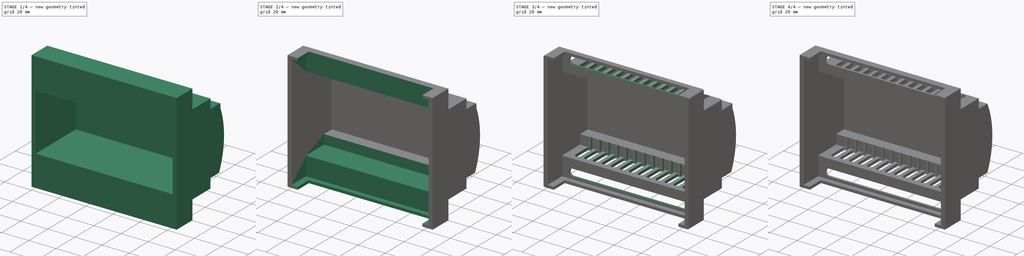
[diagram: build sequence overview — one tinted view per stage of 4, left to right]
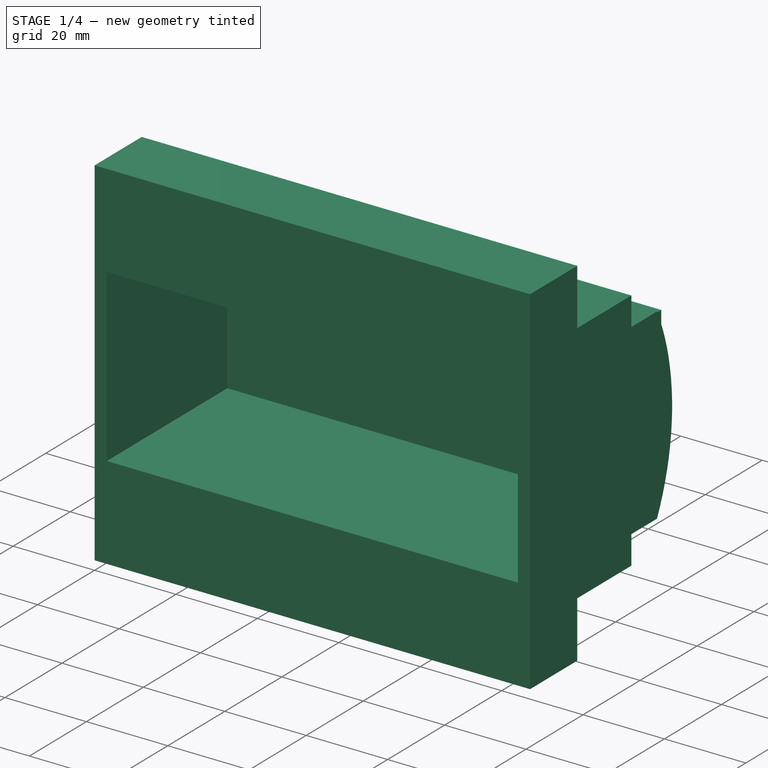
[diagram: stage 1 of 4 — iso view after this stage's code; geometry added in this stage tinted green]
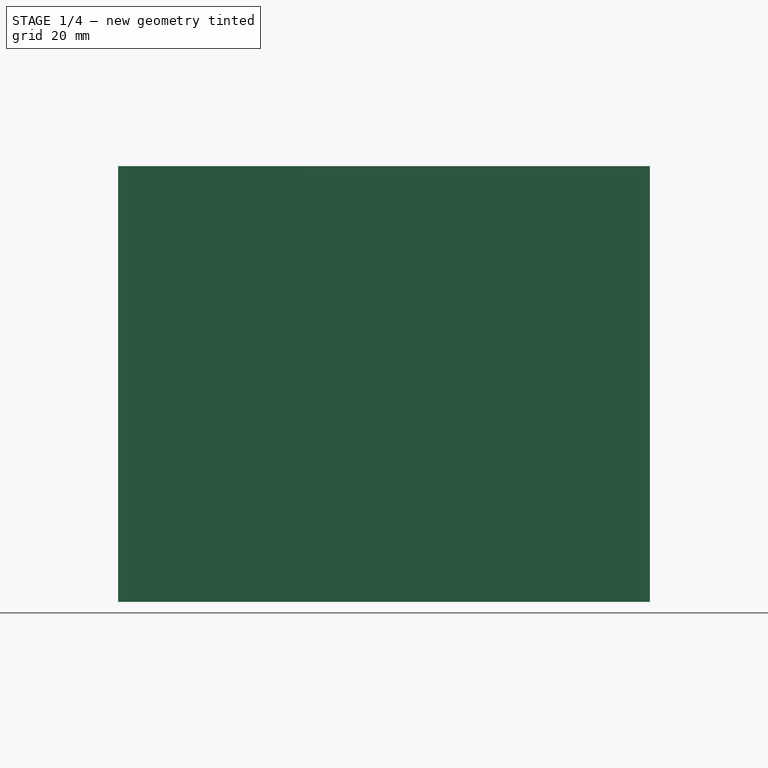
[diagram: stage 1 of 4 — front view after this stage's code; geometry added in this stage tinted green]
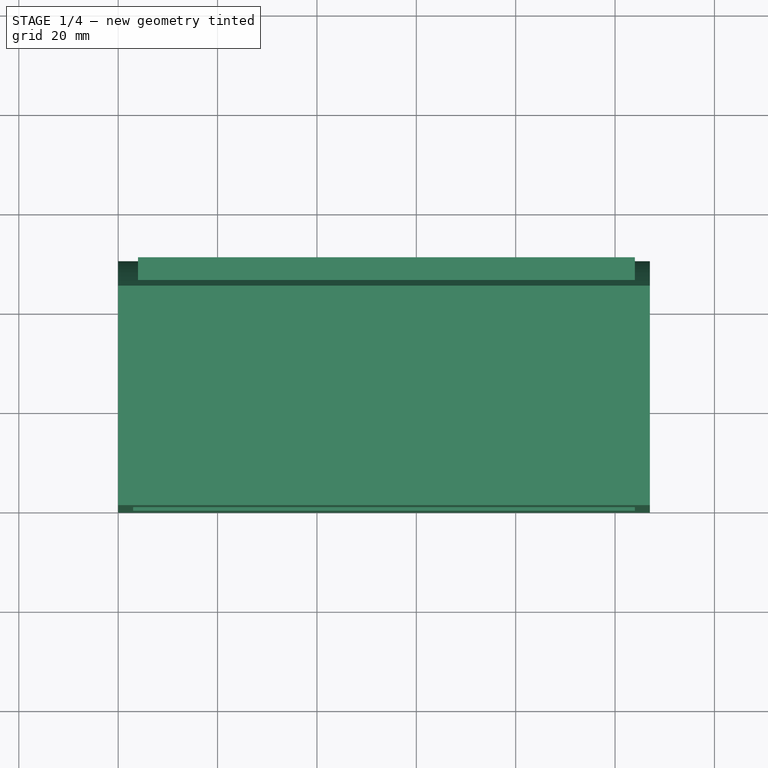
[diagram: stage 1 of 4 — top view after this stage's code; geometry added in this stage tinted green]
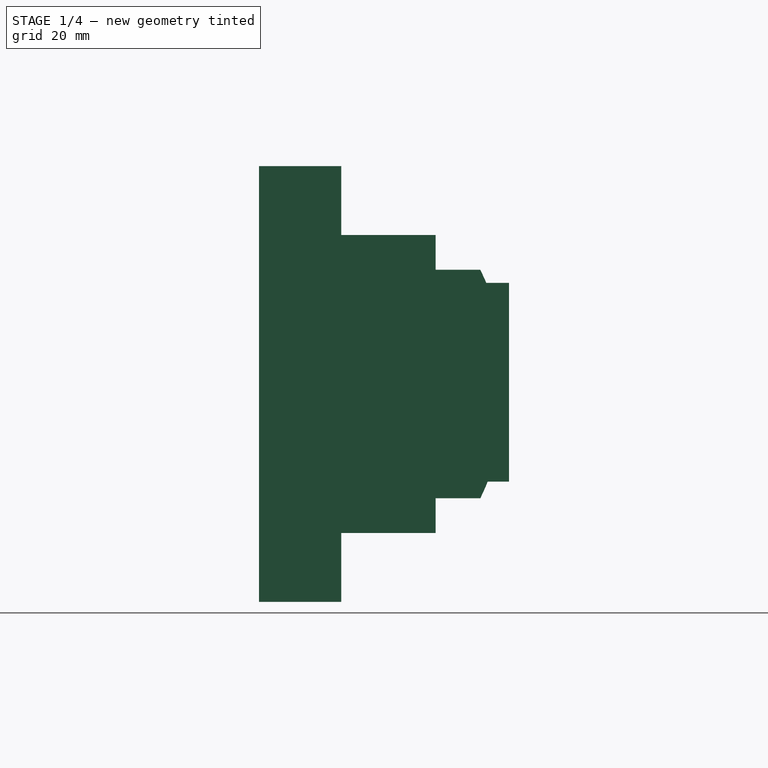
[diagram: stage 1 of 4 — right view after this stage's code; geometry added in this stage tinted green]
FCSTD DOCUMENT  (FreeCAD 1.0R39319 (Git))
Label: primera parte
License: All rights reserved
LicenseURL: https://en.wikipedia.org/wiki/All_rights_reserved
objects: Sketcher::SketchObject×7, PartDesign::Pocket×6, Part::Fillet×2, Part::Box×2, Part::Cut×2, PartDesign::Pad×1, PartDesign::Body×1
note: 42 computed .brp shape members not serialized (recipe doc carries the construction recipe); baked Part::Feature solids carry a one-line shape summary decoded from their .brp

FEATURE [Sketcher::SketchObject] Sketch
  ArcFitTolerance = 1e-06
  AttachmentSupport = -> [YZ_Plane]
  FullyConstrained = false
  MakeInternals = false
  MapMode = 5
  Placement = pos=(0,0,0) rot=(0.57735,0.57735,0.57735;2.0944rad)
  sketch-geometry (13):
    g0: LineSegment StartX=0 StartY=0 StartZ=0 EndX=0 EndY=-87.7 EndZ=0
    g1: LineSegment StartX=0 StartY=-87.7 StartZ=0 EndX=16.54 EndY=-87.7 EndZ=0
    g2: LineSegment StartX=16.54 StartY=-87.7 StartZ=0 EndX=16.54 EndY=-73.85 EndZ=0
    g3: LineSegment StartX=16.54 StartY=-73.85 StartZ=0 EndX=35.54 EndY=-73.85 EndZ=0
    g4: LineSegment StartX=35.54 StartY=-73.85 StartZ=0 EndX=35.54 EndY=-66.85 EndZ=0
    g5: LineSegment StartX=35.54 StartY=-66.85 StartZ=0 EndX=44.54 EndY=-66.85 EndZ=0
    g6: LineSegment StartX=44.54 StartY=-20.85 StartZ=0 EndX=35.54 EndY=-20.85 EndZ=0
    g7: LineSegment StartX=35.54 StartY=-20.85 StartZ=0 EndX=35.54 EndY=-13.85 EndZ=0
    g8: LineSegment StartX=35.54 StartY=-13.85 StartZ=0 EndX=16.54 EndY=-13.85 EndZ=0
    g9: LineSegment StartX=16.54 StartY=-13.85 StartZ=0 EndX=16.54 EndY=0 EndZ=0
    g10: LineSegment StartX=16.54 StartY=0 StartZ=0 EndX=0 EndY=0 EndZ=0
    g11: ArcOfCircle CenterX=-2.71566 CenterY=-43.85 CenterZ=0 NormalX=0 NormalY=0 NormalZ=1 AngleXU=0 Radius=52.5557 StartAngle=5.83022 EndAngle=6.73615
    g12: LineSegment [constr] StartX=49.84 StartY=-30.5623 StartZ=0 EndX=49.84 EndY=-80.4449 EndZ=0
  constraints (39):
    c: Vertical(g0)
    c: Coincident(g0,g1)
    c: Horizontal(g1)
    c: Coincident(g1,g2)
    c: Vertical(g2)
    c: Coincident(g2,g3)
    c: Horizontal(g3)
    c: Coincident(g3,g4)
    c: Coincident(g4,g5)
    c: Horizontal(g5)
    c: Horizontal(g6)
    c: Coincident(g6,g7)
    c: Vertical(g7)
    c: Coincident(g7,g8)
    c: Coincident(g8,g9)
    c: Vertical(g9)
    c: Coincident(g9,g10)
    c: Coincident(g10,g0)
    c: Horizontal(g8)
    c: Vertical(g4)
    c: DistanceY(g0,g0) = 87.7
    c: DistanceY(g1,g9) = 87.7
    c: DistanceY(g2,g8) = 60
    c: DistanceY(g4,g6) = 46
    c: Vertical(g6,g4)
    c: Vertical(g8,g2)
    c: Coincident(g11,g5)
    c: Coincident(g11,g6)
    c: DistanceX(g0,g1) = 16.54
    c: DistanceX(g0,g3) = 35.54
    c: Vertical(g6,g5)
    c: Vertical(g12)
    c: Tangent(g12,g11)
    c: DistanceX(g0,g12) = 49.84
    c: DistanceX(g5,g12) = 5.3
    c: DistanceY(g7,g9) = 13.85
    c: DistanceY(g6,g7) = 7
    c: Horizontal(g-1,g0)
    c: Vertical(g0,g-1)
FEATURE [PartDesign::Pad] Pad
  Direction = (1,0,0)
  Length = 107
  Length2 = 10
  Placement = pos=(0,0,0) rot=(1,1,1;2.0944rad)
  Profile = -> Sketch
  ReferenceAxis = -> Sketch [N_Axis]
  Refine = true
  Suppressed = false
  Type = 0
FEATURE [Sketcher::SketchObject] Sketch001
  ArcFitTolerance = 1e-06
  AttachmentSupport = -> [XZ_Plane]
  FullyConstrained = true
  MakeInternals = false
  MapMode = 5
  Placement = pos=(0,0,0) rot=(1,0,0;1.5708rad)
  sketch-geometry (4):
    g0: LineSegment StartX=3 StartY=-22.85 StartZ=0 EndX=3 EndY=-64.85 EndZ=0
    g1: LineSegment StartX=3 StartY=-64.85 StartZ=0 EndX=104 EndY=-64.85 EndZ=0
    g2: LineSegment StartX=104 StartY=-64.85 StartZ=0 EndX=104 EndY=-22.85 EndZ=0
    g3: LineSegment StartX=104 StartY=-22.85 StartZ=0 EndX=3 EndY=-22.85 EndZ=0
  constraints (12):
    c: Coincident(g0,g1)
    c: Coincident(g1,g2)
    c: Coincident(g2,g3)
    c: Coincident(g3,g0)
    c: Vertical(g0)
    c: Vertical(g2)
    c: Horizontal(g1)
    c: Horizontal(g3)
    c: DistanceX(g1,g1) = 101
    c: DistanceY(g2,g2) = 42
    c: DistanceY(g0,g-1) = 22.85
    c: DistanceX(g-1,g0) = 3
FEATURE [PartDesign::Pocket] Pocket
  BaseFeature = -> Pad
  Direction = (0,1,-2e-16)
  Length = 42.3
  Length2 = 5
  Placement = pos=(0,0,0) rot=(1,1,1;2.0944rad)
  Profile = -> Sketch001
  ReferenceAxis = -> Sketch001 [N_Axis]
  Refine = true
  Suppressed = false
  Type = 0
FEATURE [Part::Box] Box001  label="Cube001"
  AttacherType = Attacher::AttachEngine3D
  Height = 40
  Length = 100
  Placement = pos=(4,45,-63.5) rot=(0,0,1;0rad)
  Width = 5.3
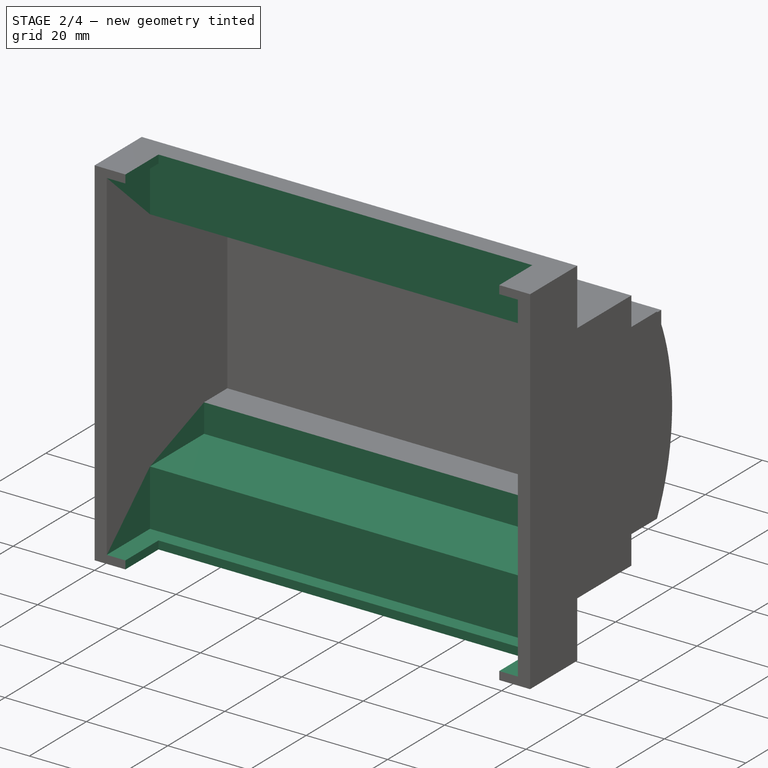
[diagram: stage 2 of 4 — iso view after this stage's code; geometry added in this stage tinted green]
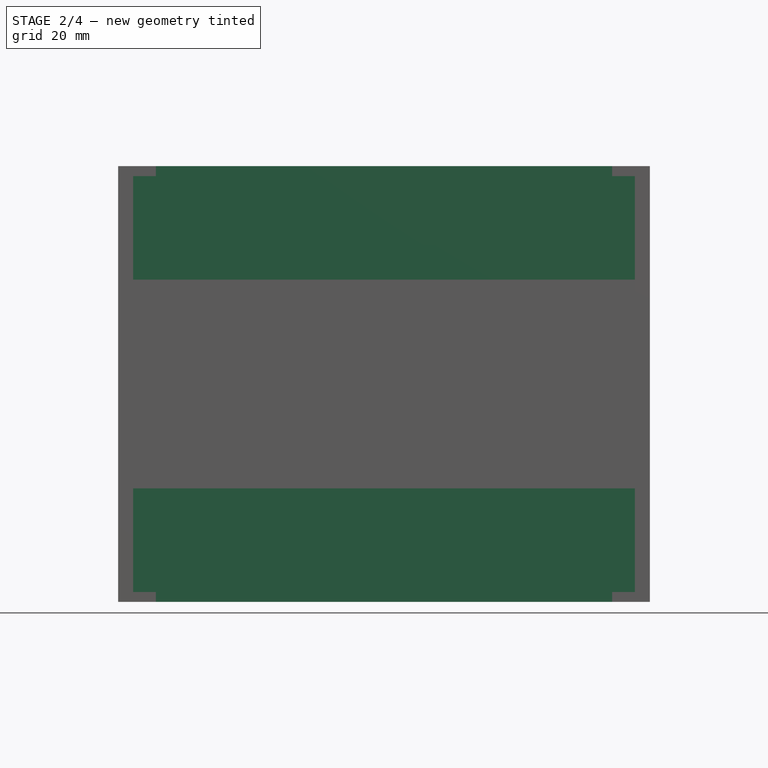
[diagram: stage 2 of 4 — front view after this stage's code; geometry added in this stage tinted green]
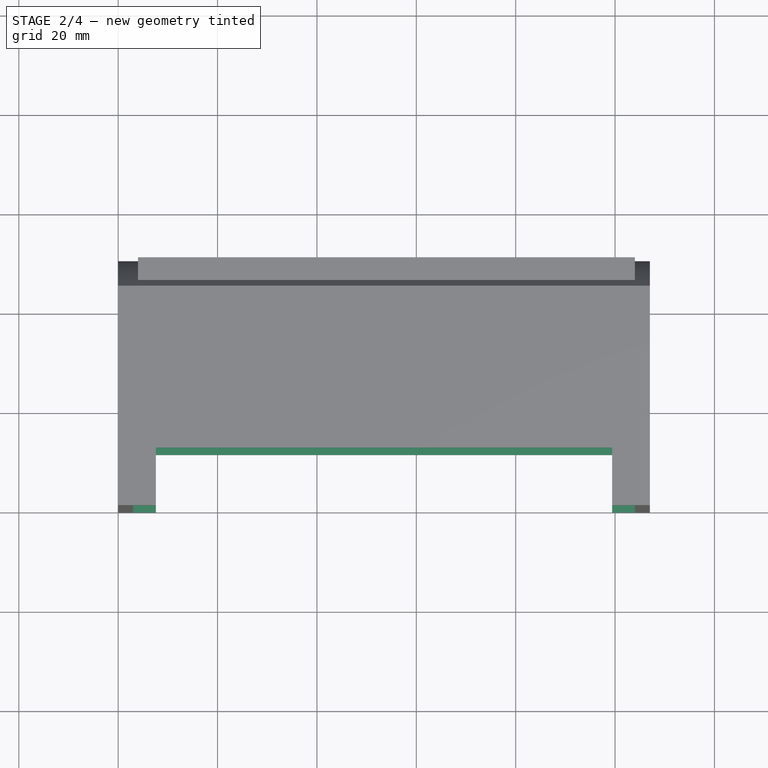
[diagram: stage 2 of 4 — top view after this stage's code; geometry added in this stage tinted green]
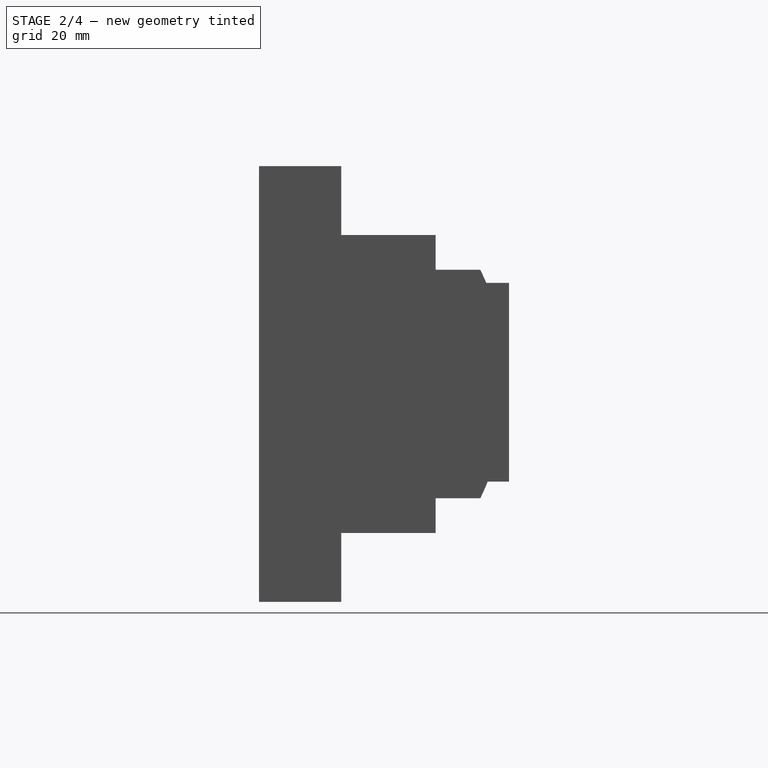
[diagram: stage 2 of 4 — right view after this stage's code; geometry added in this stage tinted green]
FEATURE [Sketcher::SketchObject] Sketch002
  ArcFitTolerance = 1e-06
  AttachmentSupport = -> [XZ_Plane]
  FullyConstrained = true
  MakeInternals = false
  MapMode = 5
  Placement = pos=(0,0,0) rot=(1,0,0;1.5708rad)
  sketch-geometry (4):
    g0: LineSegment StartX=3 StartY=-15.85 StartZ=0 EndX=3 EndY=-71.85 EndZ=0
    g1: LineSegment StartX=3 StartY=-71.85 StartZ=0 EndX=104 EndY=-71.85 EndZ=0
    g2: LineSegment StartX=104 StartY=-71.85 StartZ=0 EndX=104 EndY=-15.85 EndZ=0
    g3: LineSegment StartX=104 StartY=-15.85 StartZ=0 EndX=3 EndY=-15.85 EndZ=0
  constraints (12):
    c: Coincident(g0,g1)
    c: Coincident(g1,g2)
    c: Coincident(g2,g3)
    c: Coincident(g3,g0)
    c: Vertical(g0)
    c: Vertical(g2)
    c: Horizontal(g1)
    c: Horizontal(g3)
    c: DistanceX(g1,g1) = 101
    c: DistanceX(g0) = 3
    c: DistanceY(g2,g2) = 56
    c: DistanceY(g0,g-1) = 15.85
FEATURE [PartDesign::Pocket] Pocket001
  BaseFeature = -> Pocket
  Direction = (0,1,-2e-16)
  Length = 34.14
  Length2 = 5
  Placement = pos=(0,0,0) rot=(1,1,1;2.0944rad)
  Profile = -> Sketch002
  ReferenceAxis = -> Sketch002 [N_Axis]
  Refine = true
  Suppressed = false
  Type = 0
FEATURE [Sketcher::SketchObject] Sketch003
  ArcFitTolerance = 1e-06
  AttachmentSupport = -> [XZ_Plane]
  FullyConstrained = true
  MakeInternals = false
  MapMode = 5
  Placement = pos=(0,0,0) rot=(1,0,0;1.5708rad)
  sketch-geometry (4):
    g0: LineSegment StartX=3 StartY=-2 StartZ=0 EndX=3 EndY=-85.7 EndZ=0
    g1: LineSegment StartX=3 StartY=-85.7 StartZ=0 EndX=104 EndY=-85.7 EndZ=0
    g2: LineSegment StartX=104 StartY=-85.7 StartZ=0 EndX=104 EndY=-2 EndZ=0
    g3: LineSegment StartX=104 StartY=-2 StartZ=0 EndX=3 EndY=-2 EndZ=0
  constraints (12):
    c: Coincident(g0,g1)
    c: Coincident(g1,g2)
    c: Coincident(g2,g3)
    c: Coincident(g3,g0)
    c: Vertical(g0)
    c: Vertical(g2)
    c: Horizontal(g1)
    c: Horizontal(g3)
    c: DistanceX(g1,g1) = 101
    c: DistanceX(g0) = 3
    c: DistanceY(g2,g2) = 83.7
    c: DistanceY(g0,g-1) = 2
FEATURE [PartDesign::Pocket] Pocket002
  BaseFeature = -> Pocket001
  Direction = (0,1,-2e-16)
  Length = 15.16
  Length2 = 5
  Placement = pos=(0,0,0) rot=(1,1,1;2.0944rad)
  Profile = -> Sketch003
  ReferenceAxis = -> Sketch003 [N_Axis]
  Refine = true
  Suppressed = false
  Type = 0
FEATURE [Sketcher::SketchObject] Sketch004
  ArcFitTolerance = 1e-06
  AttachmentSupport = -> [Pocket002]
  FullyConstrained = true
  MakeInternals = false
  MapMode = 5
  Placement = pos=(9.74e-14,-5.84e-14,-87.7) rot=(0.707107,0.707107,0;3.14159rad)
  sketch-geometry (4):
    g0: LineSegment StartX=0 StartY=99.425 StartZ=0 EndX=0 EndY=7.575 EndZ=0
    g1: LineSegment StartX=0 StartY=7.575 StartZ=0 EndX=11.6 EndY=7.575 EndZ=0
    g2: LineSegment StartX=11.6 StartY=7.575 StartZ=0 EndX=11.6 EndY=99.425 EndZ=0
    g3: LineSegment StartX=11.6 StartY=99.425 StartZ=0 EndX=0 EndY=99.425 EndZ=0
  constraints (12):
    c: Coincident(g0,g1)
    c: Coincident(g1,g2)
    c: Coincident(g2,g3)
    c: Coincident(g3,g0)
    c: Vertical(g0)
    c: Vertical(g2)
    c: Horizontal(g1)
    c: Horizontal(g3)
    c: PointOnObject(g0,g-2)
    c: DistanceY(g0,g0) = 91.85
    c: DistanceX(g3,g3) = 11.6
    c: DistanceY(g-1,g0) = 7.575
FEATURE [PartDesign::Pocket] Pocket003
  BaseFeature = -> Pocket002
  Direction = (-1.1e-15,0,1)
  Length = 5
  Length2 = 5
  Placement = pos=(0,0,0) rot=(1,1,1;2.0944rad)
  Profile = -> Sketch004
  ReferenceAxis = -> Sketch004 [N_Axis]
  Refine = true
  Suppressed = false
  Type = 1
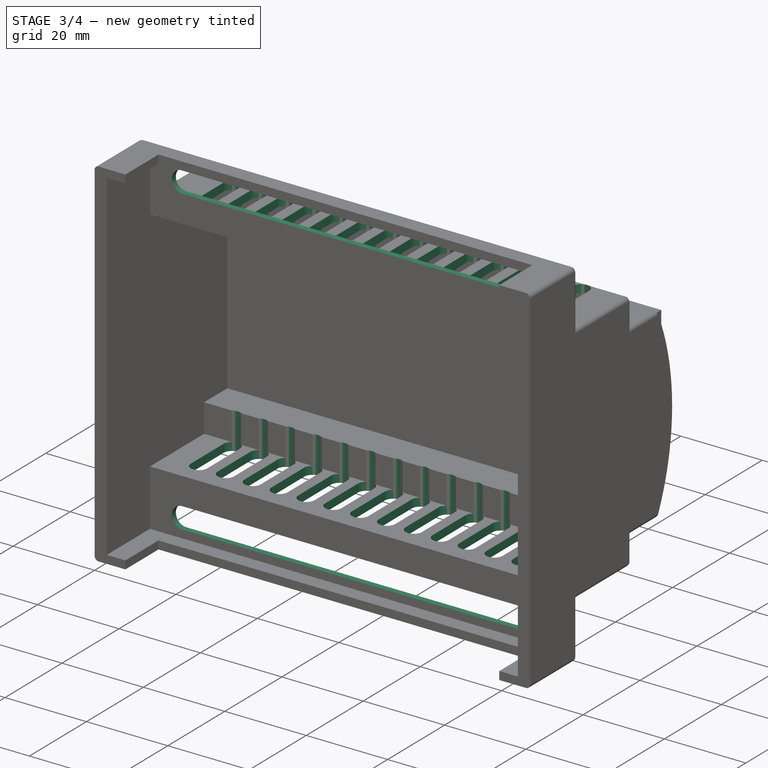
[diagram: stage 3 of 4 — iso view after this stage's code; geometry added in this stage tinted green]
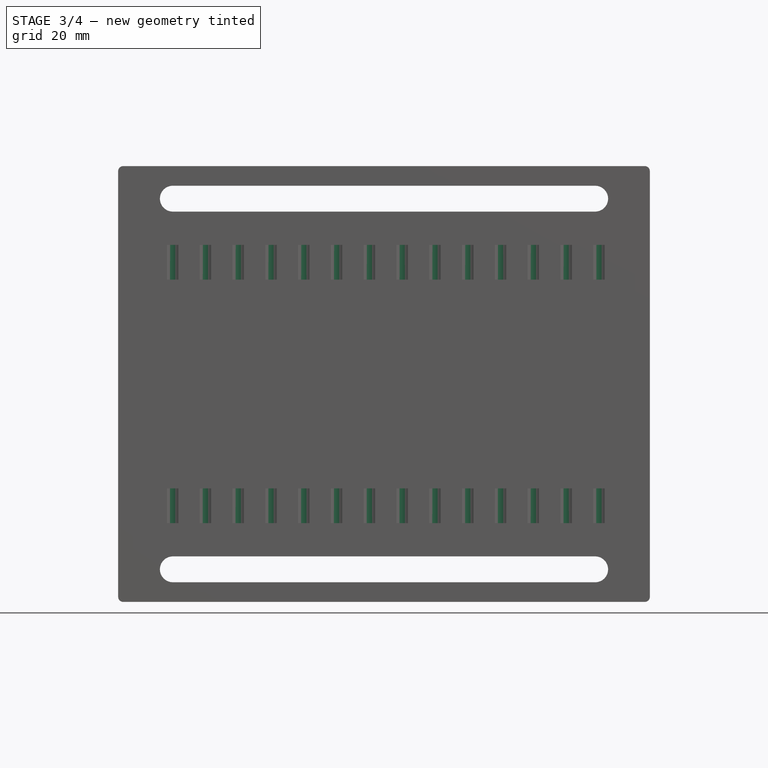
[diagram: stage 3 of 4 — front view after this stage's code; geometry added in this stage tinted green]
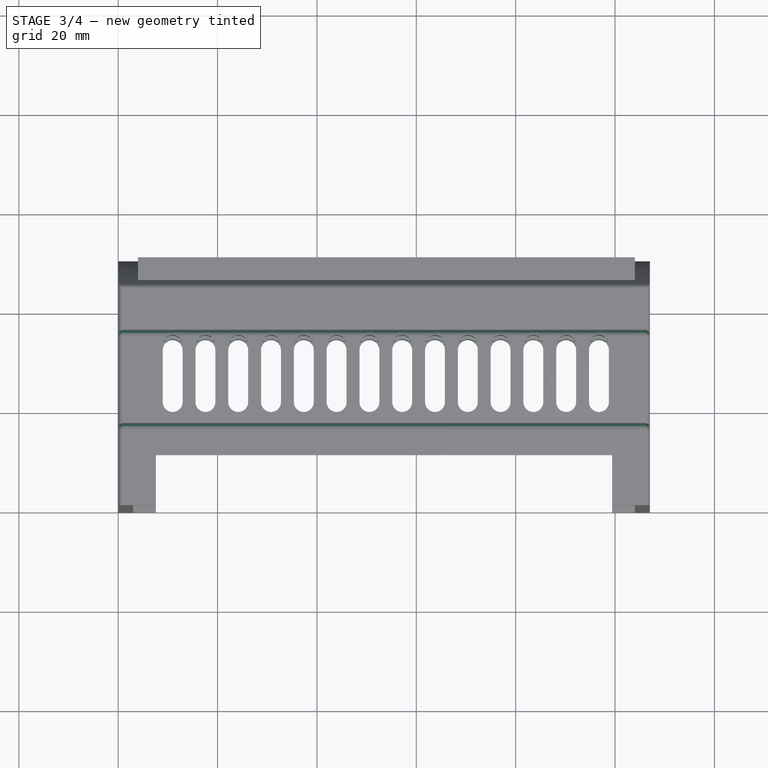
[diagram: stage 3 of 4 — top view after this stage's code; geometry added in this stage tinted green]
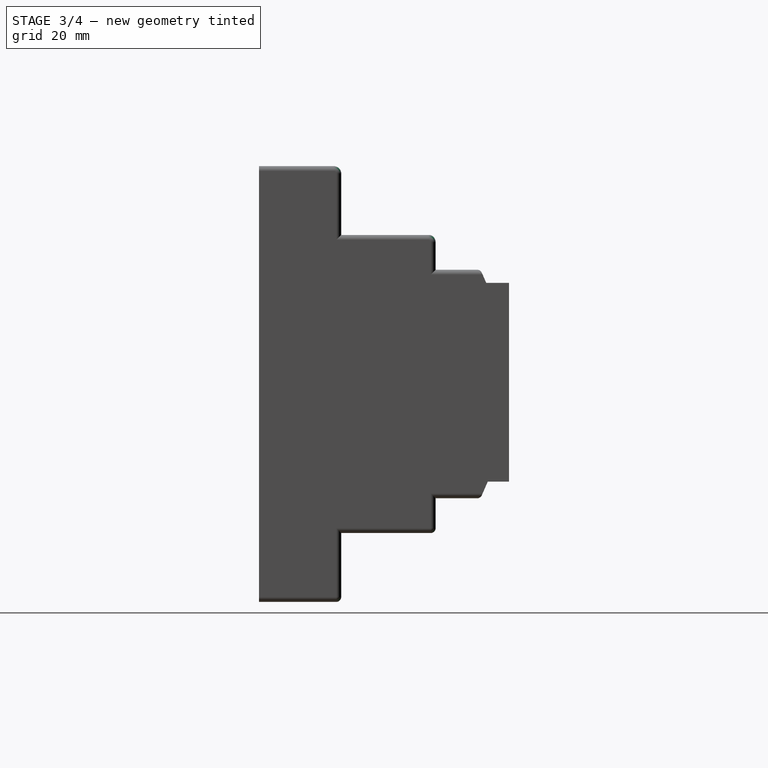
[diagram: stage 3 of 4 — right view after this stage's code; geometry added in this stage tinted green]
FEATURE [Sketcher::SketchObject] Sketch005
  ArcFitTolerance = 1e-06
  AttachmentSupport = -> [Pocket003]
  FullyConstrained = true
  MakeInternals = false
  MapMode = 5
  Placement = pos=(3.7e-15,16.54,-2.39e-14) rot=(0.57735,0.57735,0.57735;4.18879rad)
  sketch-geometry (8):
    g0: ArcOfCircle CenterX=-81.15 CenterY=96 CenterZ=0 NormalX=0 NormalY=0 NormalZ=1 AngleXU=0 Radius=2.6 StartAngle=5.656e-13 EndAngle=3.14159
    g1: ArcOfCircle CenterX=-81.15 CenterY=11 CenterZ=0 NormalX=0 NormalY=0 NormalZ=1 AngleXU=0 Radius=2.6 StartAngle=3.14159 EndAngle=6.28319
    g2: LineSegment StartX=-78.55 StartY=96 StartZ=0 EndX=-78.55 EndY=11 EndZ=0
    g3: LineSegment StartX=-83.75 StartY=96 StartZ=0 EndX=-83.75 EndY=11 EndZ=0
    g4: ArcOfCircle CenterX=-6.55 CenterY=96 CenterZ=0 NormalX=0 NormalY=0 NormalZ=1 AngleXU=0 Radius=2.6 StartAngle=6e-16 EndAngle=3.14159
    g5: ArcOfCircle CenterX=-6.55 CenterY=11 CenterZ=0 NormalX=0 NormalY=0 NormalZ=1 AngleXU=0 Radius=2.6 StartAngle=3.14159 EndAngle=6.28319
    g6: LineSegment StartX=-3.95 StartY=96 StartZ=0 EndX=-3.95 EndY=11 EndZ=0
    g7: LineSegment StartX=-9.15 StartY=96 StartZ=0 EndX=-9.15 EndY=11 EndZ=0
  constraints (20):
    c: Tangent(g0,g2) = 1.5708
    c: Tangent(g0,g3) = -1.5708
    c: Tangent(g1,g2) = 1.5708
    c: Tangent(g1,g3) = -1.5708
    c: Equal(g0,g1)
    c: Vertical(g3)
    c: Tangent(g4,g6) = 1.5708
    c: Tangent(g4,g7) = -1.5708
    c: Tangent(g5,g6) = 1.5708
    c: Tangent(g5,g7) = -1.5708
    c: Equal(g4,g5)
    c: Vertical(g7)
    c: DistanceY(g1,g0) = 85
    c: DistanceY(g5,g4) = 85
    c: DistanceX(g1,g5) = 74.6
    c: DistanceX(g5,g-1) = 6.55
    c: DistanceY(g-1,g5) = 11
    c: Horizontal(g5,g1)
    c: DistanceX(g4,g4) = 5.2
    c: DistanceX(g0,g0) = 5.2
FEATURE [Sketcher::SketchObject] Sketch006
  ArcFitTolerance = 1e-06
  AttachmentSupport = -> [XY_Plane]
  FullyConstrained = false
  MakeInternals = false
  MapMode = 5
  sketch-geometry (56):
    g0: ArcOfCircle CenterX=10.96 CenterY=21 CenterZ=0 NormalX=0 NormalY=0 NormalZ=1 AngleXU=0 Radius=2 StartAngle=3.14159 EndAngle=6.28319
    g1: ArcOfCircle CenterX=10.96 CenterY=32.5 CenterZ=0 NormalX=0 NormalY=0 NormalZ=1 AngleXU=0 Radius=2 StartAngle=-1.8e-15 EndAngle=3.14159
    g2: LineSegment StartX=8.96 StartY=21 StartZ=0 EndX=8.96 EndY=32.5 EndZ=0
    g3: LineSegment StartX=12.96 StartY=21 StartZ=0 EndX=12.96 EndY=32.5 EndZ=0
    g4: ArcOfCircle CenterX=17.56 CenterY=21 CenterZ=0 NormalX=0 NormalY=0 NormalZ=1 AngleXU=0 Radius=2 StartAngle=3.14159 EndAngle=6.28319
    g5: ArcOfCircle CenterX=17.56 CenterY=32.5 CenterZ=0 NormalX=0 NormalY=0 NormalZ=1 AngleXU=0 Radius=2 StartAngle=8.1e-15 EndAngle=3.14159
    g6: LineSegment StartX=15.56 StartY=21 StartZ=0 EndX=15.56 EndY=32.5 EndZ=0
    g7: LineSegment StartX=19.56 StartY=21 StartZ=0 EndX=19.56 EndY=32.5 EndZ=0
    g8: ArcOfCircle CenterX=24.16 CenterY=21 CenterZ=0 NormalX=0 NormalY=0 NormalZ=1 AngleXU=0 Radius=2 StartAngle=3.14159 EndAngle=6.28319
    g9: ArcOfCircle CenterX=24.16 CenterY=32.5 CenterZ=0 NormalX=0 NormalY=0 NormalZ=1 AngleXU=0 Radius=2 StartAngle=8.1e-15 EndAngle=3.14159
    g10: LineSegment StartX=22.16 StartY=21 StartZ=0 EndX=22.16 EndY=32.5 EndZ=0
    g11: LineSegment StartX=26.16 StartY=21 StartZ=0 EndX=26.16 EndY=32.5 EndZ=0
    g12: ArcOfCircle CenterX=30.76 CenterY=21 CenterZ=0 NormalX=0 NormalY=0 NormalZ=1 AngleXU=0 Radius=2 StartAngle=3.14159 EndAngle=6.28319
    g13: ArcOfCircle CenterX=30.76 CenterY=32.5 CenterZ=0 NormalX=0 NormalY=0 NormalZ=1 AngleXU=0 Radius=2 StartAngle=7.8e-15 EndAngle=3.14159
    g14: LineSegment StartX=28.76 StartY=21 StartZ=0 EndX=28.76 EndY=32.5 EndZ=0
    g15: LineSegment StartX=32.76 StartY=21 StartZ=0 EndX=32.76 EndY=32.5 EndZ=0
    g16: ArcOfCircle CenterX=37.36 CenterY=21 CenterZ=0 NormalX=0 NormalY=0 NormalZ=1 AngleXU=0 Radius=2 StartAngle=3.14159 EndAngle=6.28319
    g17: ArcOfCircle CenterX=37.36 CenterY=32.5 CenterZ=0 NormalX=0 NormalY=0 NormalZ=1 AngleXU=0 Radius=2 StartAngle=8.4e-15 EndAngle=3.14159
    g18: LineSegment StartX=35.36 StartY=21 StartZ=0 EndX=35.36 EndY=32.5 EndZ=0
    g19: LineSegment StartX=39.36 StartY=21 StartZ=0 EndX=39.36 EndY=32.5 EndZ=0
    g20: ArcOfCircle CenterX=43.96 CenterY=21 CenterZ=0 NormalX=0 NormalY=0 NormalZ=1 AngleXU=0 Radius=2 StartAngle=3.14159 EndAngle=6.28319
    g21: ArcOfCircle CenterX=43.96 CenterY=32.5 CenterZ=0 NormalX=0 NormalY=0 NormalZ=1 AngleXU=0 Radius=2 StartAngle=8.4e-15 EndAngle=3.14159
    g22: LineSegment StartX=41.96 StartY=21 StartZ=0 EndX=41.96 EndY=32.5 EndZ=0
    g23: LineSegment StartX=45.96 StartY=21 StartZ=0 EndX=45.96 EndY=32.5 EndZ=0
    g24: ArcOfCircle CenterX=50.56 CenterY=21 CenterZ=0 NormalX=0 NormalY=0 NormalZ=1 AngleXU=0 Radius=2 StartAngle=3.14159 EndAngle=6.28319
    g25: ArcOfCircle CenterX=50.56 CenterY=32.5 CenterZ=0 NormalX=0 NormalY=0 NormalZ=1 AngleXU=0 Radius=2 StartAngle=8.4e-15 EndAngle=3.14159
    g26: LineSegment StartX=48.56 StartY=21 StartZ=0 EndX=48.56 EndY=32.5 EndZ=0
    g27: LineSegment StartX=52.56 StartY=21 StartZ=0 EndX=52.56 EndY=32.5 EndZ=0
    g28: ArcOfCircle CenterX=57.16 CenterY=21 CenterZ=0 NormalX=0 NormalY=0 NormalZ=1 AngleXU=0 Radius=2 StartAngle=3.14159 EndAngle=6.28319
    g29: ArcOfCircle CenterX=57.16 CenterY=32.5 CenterZ=0 NormalX=0 NormalY=0 NormalZ=1 AngleXU=0 Radius=2 StartAngle=8.4e-15 EndAngle=3.14159
    g30: LineSegment StartX=55.16 StartY=21 StartZ=0 EndX=55.16 EndY=32.5 EndZ=0
    g31: LineSegment StartX=59.16 StartY=21 StartZ=0 EndX=59.16 EndY=32.5 EndZ=0
    g32: ArcOfCircle CenterX=63.76 CenterY=21 CenterZ=0 NormalX=0 NormalY=0 NormalZ=1 AngleXU=0 Radius=2 StartAngle=3.14159 EndAngle=6.28319
    g33: ArcOfCircle CenterX=63.76 CenterY=32.5 CenterZ=0 NormalX=0 NormalY=0 NormalZ=1 AngleXU=0 Radius=2 StartAngle=9e-15 EndAngle=3.14159
    g34: LineSegment StartX=61.76 StartY=21 StartZ=0 EndX=61.76 EndY=32.5 EndZ=0
    g35: LineSegment StartX=65.76 StartY=21 StartZ=0 EndX=65.76 EndY=32.5 EndZ=0
    g36: ArcOfCircle CenterX=70.36 CenterY=21 CenterZ=0 NormalX=0 NormalY=0 NormalZ=1 AngleXU=0 Radius=2 StartAngle=3.14159 EndAngle=6.28319
    g37: ArcOfCircle CenterX=70.36 CenterY=32.5 CenterZ=0 NormalX=0 NormalY=0 NormalZ=1 AngleXU=0 Radius=2 StartAngle=7.8e-15 EndAngle=3.14159
    g38: LineSegment StartX=68.36 StartY=21 StartZ=0 EndX=68.36 EndY=32.5 EndZ=0
    g39: LineSegment StartX=72.36 StartY=21 StartZ=0 EndX=72.36 EndY=32.5 EndZ=0
    g40: ArcOfCircle CenterX=76.96 CenterY=21 CenterZ=0 NormalX=0 NormalY=0 NormalZ=1 AngleXU=0 Radius=2 StartAngle=3.14159 EndAngle=6.28319
    g41: ArcOfCircle CenterX=76.96 CenterY=32.5 CenterZ=0 NormalX=0 NormalY=0 NormalZ=1 AngleXU=0 Radius=2 StartAngle=7.8e-15 EndAngle=3.14159
    g42: LineSegment StartX=74.96 StartY=21 StartZ=0 EndX=74.96 EndY=32.5 EndZ=0
    g43: LineSegment StartX=78.96 StartY=21 StartZ=0 EndX=78.96 EndY=32.5 EndZ=0
    g44: ArcOfCircle CenterX=83.56 CenterY=21 CenterZ=0 NormalX=0 NormalY=0 NormalZ=1 AngleXU=0 Radius=2 StartAngle=3.14159 EndAngle=6.28319
    g45: ArcOfCircle CenterX=83.56 CenterY=32.5 CenterZ=0 NormalX=0 NormalY=0 NormalZ=1 AngleXU=0 Radius=2 StartAngle=7.8e-15 EndAngle=3.14159
    g46: LineSegment StartX=81.56 StartY=21 StartZ=0 EndX=81.56 EndY=32.5 EndZ=0
    g47: LineSegment StartX=85.56 StartY=21 StartZ=0 EndX=85.56 EndY=32.5 EndZ=0
    g48: ArcOfCircle CenterX=90.16 CenterY=21 CenterZ=0 NormalX=0 NormalY=0 NormalZ=1 AngleXU=0 Radius=2 StartAngle=3.14159 EndAngle=6.28319
    g49: ArcOfCircle CenterX=90.16 CenterY=32.5 CenterZ=0 NormalX=0 NormalY=0 NormalZ=1 AngleXU=0 Radius=2 StartAngle=7.8e-15 EndAngle=3.14159
    g50: LineSegment StartX=88.16 StartY=21 StartZ=0 EndX=88.16 EndY=32.5 EndZ=0
    g51: LineSegment StartX=92.16 StartY=21 StartZ=0 EndX=92.16 EndY=32.5 EndZ=0
    g52: ArcOfCircle CenterX=96.76 CenterY=21 CenterZ=0 NormalX=0 NormalY=0 NormalZ=1 AngleXU=0 Radius=2 StartAngle=3.14159 EndAngle=6.28319
    g53: ArcOfCircle CenterX=96.76 CenterY=32.5 CenterZ=0 NormalX=0 NormalY=0 NormalZ=1 AngleXU=0 Radius=2 StartAngle=7.8e-15 EndAngle=3.14159
    g54: LineSegment StartX=94.76 StartY=21 StartZ=0 EndX=94.76 EndY=32.5 EndZ=0
    g55: LineSegment StartX=98.76 StartY=21 StartZ=0 EndX=98.76 EndY=32.5 EndZ=0
  constraints (114):
    c: Tangent(g0,g2) = 1.5708
    c: Tangent(g0,g3) = -1.5708
    c: Tangent(g1,g2) = 1.5708
    c: Tangent(g1,g3) = -1.5708
    c: Equal(g0,g1)
    c: Vertical(g2)
    c: DistanceX(g1,g1) = 4
    c: DistanceX(g-1,g0) = 10.96
    c: DistanceY(g-1,g0) = 21
    c: DistanceY(g0,g1) = 11.5
    c: Tangent(g4,g6) = 1.5708
    c: Tangent(g8,g10) = 1.5708
    c: Tangent(g12,g14) = 1.5708
    c: Tangent(g16,g18) = 1.5708
    c: Tangent(g20,g22) = 1.5708
    c: Tangent(g24,g26) = 1.5708
    c: Tangent(g28,g30) = 1.5708
    c: Tangent(g32,g34) = 1.5708
    c: Tangent(g36,g38) = 1.5708
    c: Tangent(g40,g42) = 1.5708
    c: Tangent(g44,g46) = 1.5708
    c: Tangent(g48,g50) = 1.5708
    c: Tangent(g52,g54) = 1.5708
    c: Tangent(g4,g7) = -1.5708
    c: Tangent(g8,g11) = -1.5708
    c: Tangent(g12,g15) = -1.5708
    c: Tangent(g16,g19) = -1.5708
    c: Tangent(g20,g23) = -1.5708
    c: Tangent(g24,g27) = -1.5708
    c: Tangent(g28,g31) = -1.5708
    c: Tangent(g32,g35) = -1.5708
    c: Tangent(g36,g39) = -1.5708
    c: Tangent(g40,g43) = -1.5708
    c: Tangent(g44,g47) = -1.5708
    c: Tangent(g48,g51) = -1.5708
    c: Tangent(g52,g55) = -1.5708
    c: Tangent(g5,g6) = 1.5708
    c: Tangent(g9,g10) = 1.5708
    c: Tangent(g13,g14) = 1.5708
    c: Tangent(g17,g18) = 1.5708
    c: Tangent(g21,g22) = 1.5708
    c: Tangent(g25,g26) = 1.5708
    c: Tangent(g29,g30) = 1.5708
    c: Tangent(g33,g34) = 1.5708
    c: Tangent(g37,g38) = 1.5708
    c: Tangent(g41,g42) = 1.5708
    c: Tangent(g45,g46) = 1.5708
    c: Tangent(g49,g50) = 1.5708
    c: Tangent(g53,g54) = 1.5708
    c: Tangent(g5,g7) = -1.5708
    c: Tangent(g9,g11) = -1.5708
    c: Tangent(g13,g15) = -1.5708
    c: Tangent(g17,g19) = -1.5708
    c: Tangent(g21,g23) = -1.5708
    c: Tangent(g25,g27) = -1.5708
    c: Tangent(g29,g31) = -1.5708
    c: Tangent(g33,g35) = -1.5708
    c: Tangent(g37,g39) = -1.5708
    c: Tangent(g41,g43) = -1.5708
    c: Tangent(g45,g47) = -1.5708
    c: Tangent(g49,g51) = -1.5708
    c: Tangent(g53,g55) = -1.5708
    c: Equal(g4,g5)
    c: Equal(g8,g9)
    c: Equal(g12,g13)
    c: Equal(g16,g17)
    c: Equal(g20,g21)
    c: Equal(g24,g25)
    c: Equal(g28,g29)
    c: Equal(g32,g33)
    c: Equal(g36,g37)
    c: Equal(g40,g41)
    c: Equal(g44,g45)
    c: Equal(g48,g49)
    c: Equal(g52,g53)
    c: Vertical(g6)
    c: Vertical(g10)
    c: Vertical(g14)
    c: Vertical(g18)
    c: Vertical(g22)
    c: Vertical(g26)
    c: Vertical(g30)
    c: Vertical(g34)
    c: Vertical(g38)
    c: Vertical(g42)
    c: Vertical(g46)
    c: Vertical(g50)
    c: Vertical(g54)
    c: Equal(g1,g5)
    c: Equal(g1,g9)
    c: Equal(g1,g13)
    c: Equal(g1,g17)
    c: Equal(g1,g21)
    c: Equal(g1,g25)
    c: Equal(g1,g29)
    c: Equal(g1,g33)
    c: Equal(g1,g37)
    c: Equal(g1,g41)
    c: Equal(g1,g45)
    c: Equal(g1,g49)
    c: Equal(g1,g53)
    c: DistanceY(g4,g5) = 11.5
    c: DistanceY(g8,g9) = 11.5
    c: DistanceY(g12,g13) = 11.5
    c: DistanceY(g16,g17) = 11.5
    c: DistanceY(g20,g21) = 11.5
    c: DistanceY(g24,g25) = 11.5
    c: DistanceY(g28,g29) = 11.5
    c: DistanceY(g32,g33) = 11.5
    c: DistanceY(g36,g37) = 11.5
    c: DistanceY(g40,g41) = 11.5
    c: DistanceY(g44,g45) = 11.5
    c: DistanceY(g48,g49) = 11.5
    c: DistanceY(g52,g53) = 11.5
FEATURE [PartDesign::Pocket] Pocket004
  BaseFeature = -> Pocket003
  Direction = (0,-1,1.3e-15)
  Length = 5
  Length2 = 5
  Placement = pos=(0,0,0) rot=(1,1,1;2.0944rad)
  Profile = -> Sketch005
  ReferenceAxis = -> Sketch005 [N_Axis]
  Refine = true
  Suppressed = false
  Type = 0
FEATURE [PartDesign::Body] Body
  AllowCompound = false
  Group = -> [Sketch,Pad,Sketch001,Pocket,Sketch002,Pocket001,Sketch003,Pocket002,Sketch004,Pocket003,Sketch005,Sketch006,Pocket004]
  Origin = -> Origin
  Tip = -> Pocket004
FEATURE [PartDesign::Pocket] Pocket005
  BaseFeature = -> Pocket004
  Direction = (0,0,-1)
  Length = 5
  Length2 = 5
  Placement = pos=(0,0,0) rot=(1,1,1;2.0944rad)
  Profile = -> Sketch006
  ReferenceAxis = -> Sketch006 [N_Axis]
  Refine = true
  Suppressed = false
  Type = 1
FEATURE [Part::Fillet] Fillet
  Base = -> Pocket005
  EdgeLinks = -> Pocket005 [Edge129]
  Edges = 1 edges r=1.5: [Edge129]
FEATURE [Part::Fillet] Fillet001
  Base = -> Fillet
  EdgeLinks = -> Fillet [Edge1,Edge3,Edge4,Edge6,Edge7,Edge8,Edge9,Edge11,Edge12,Edge13,Edge17,Edge47,Edge48,Edge51,Edge135,Edge137,Edge138,Edge144,Edge150,Edge151,Edge152,Edge160,Edge217,Edge218,Edge223]
  Edges = 25 edges: [Edge1 r=1,Edge3 r=1,Edge4 r=1,Edge6 r=1,Edge7 r=1,Edge8 r=1,Edge9 r=1,Edge11 r=1,Edge12 r=1,Edge13 r=1,Edge17 r=1,Edge47 r=1,Edge48 r=1,Edge51 r=1,Edge135 r=1,Edge137 r=1,Edge138 r=1.5,Edge144 r=1,Edge150 r=1,Edge151 r=1,Edge152 r=1,Edge160 r=1,Edge217 r=1,Edge218 r=1,Edge223 r=1]
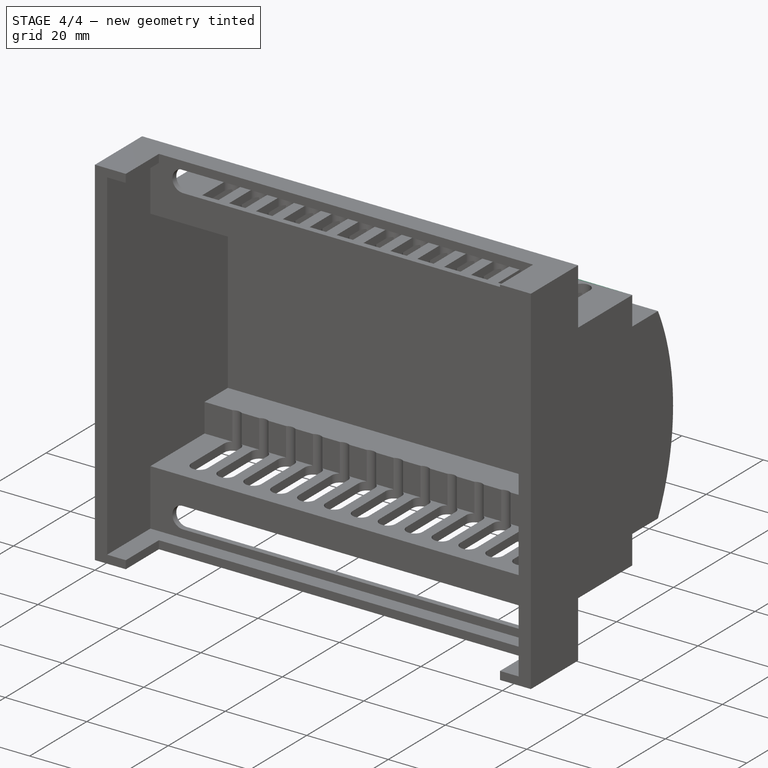
[diagram: stage 4 of 4 — iso view after this stage's code; geometry added in this stage tinted green]
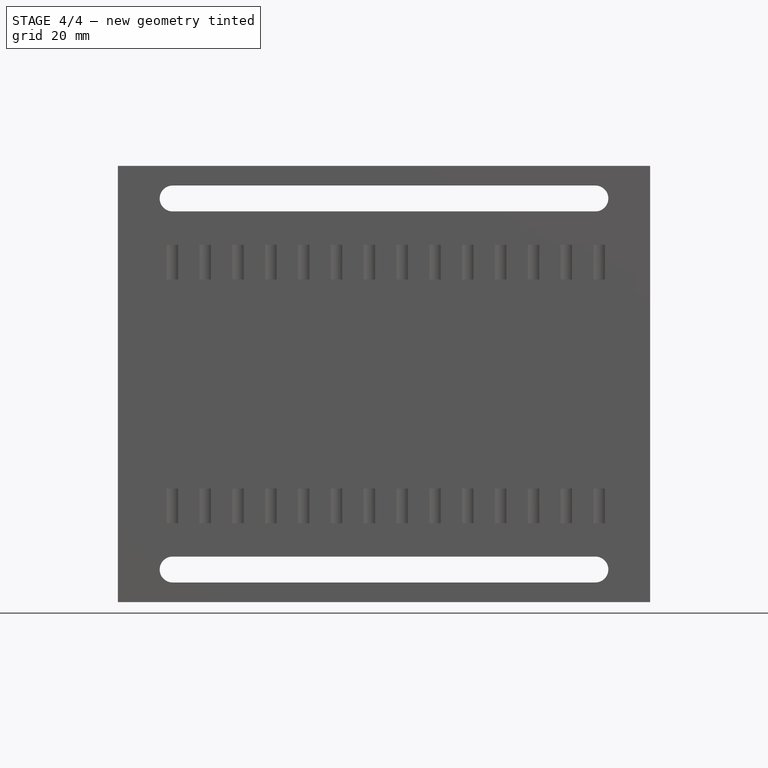
[diagram: stage 4 of 4 — front view after this stage's code; geometry added in this stage tinted green]
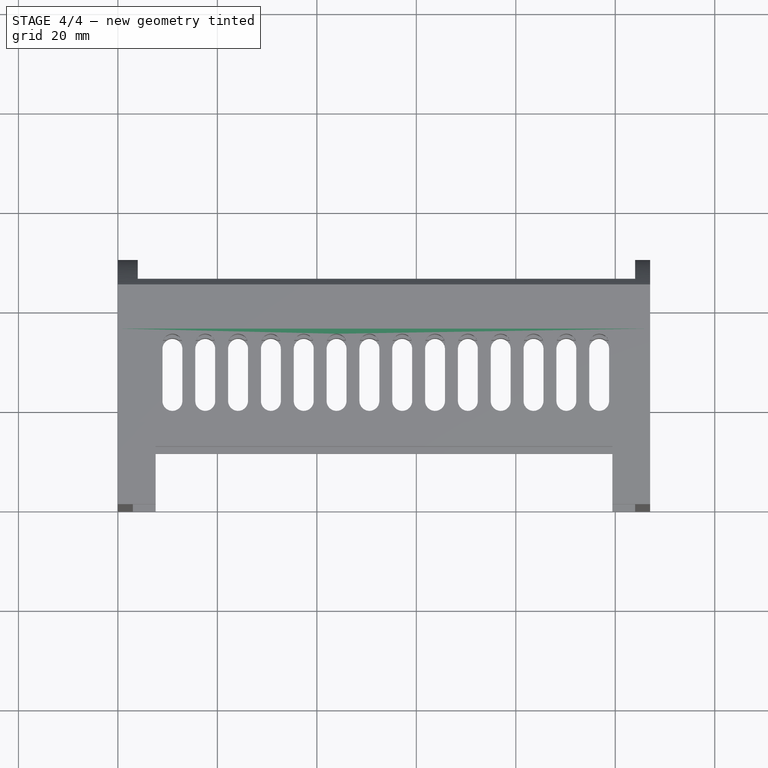
[diagram: stage 4 of 4 — top view after this stage's code; geometry added in this stage tinted green]
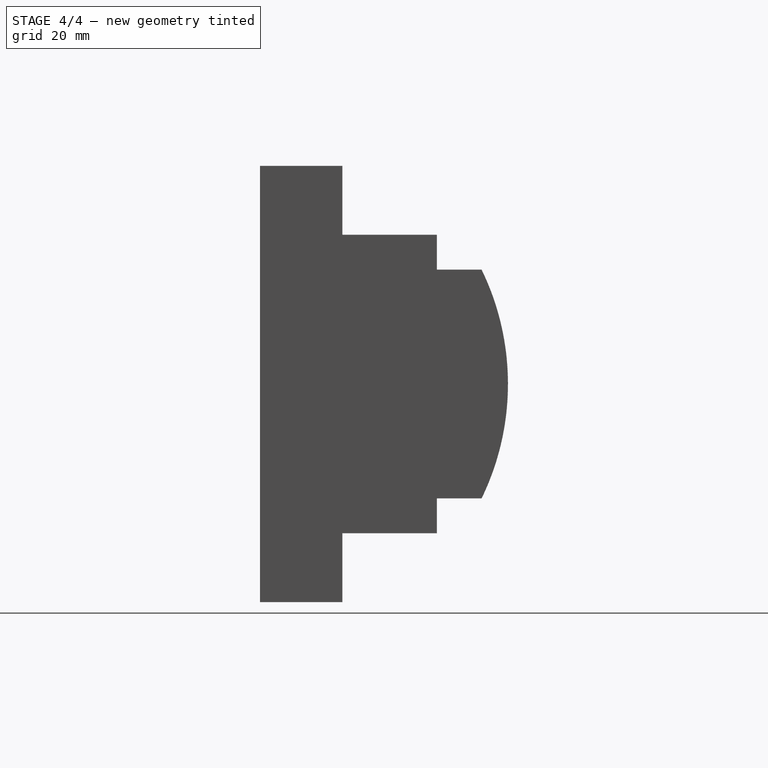
[diagram: stage 4 of 4 — right view after this stage's code; geometry added in this stage tinted green]
FEATURE [Part::Box] Box  label="Cube"
  AttacherType = Attacher::AttachEngine3D
  Height = 41
  Length = 100
  Placement = pos=(4,45,-64) rot=(0,0,1;0rad)
  Width = 5.3
FEATURE [Part::Cut] Cut
  Base = -> Pocket005
  Tool = -> Box
FEATURE [Part::Cut] Cut001
  Base = -> Fillet001
  Tool = -> Box001
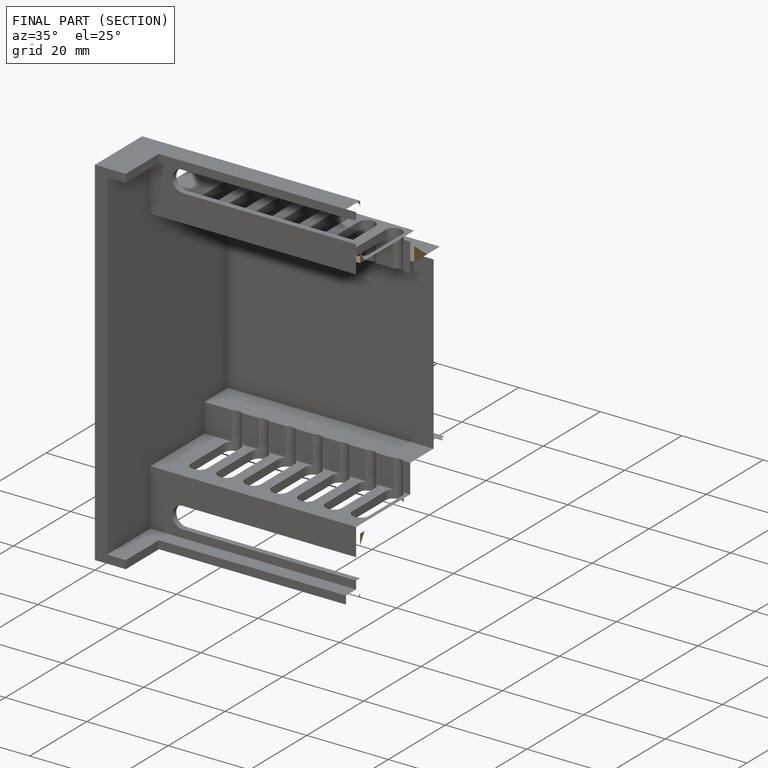
[diagram: finished part — half-section view (interior)]
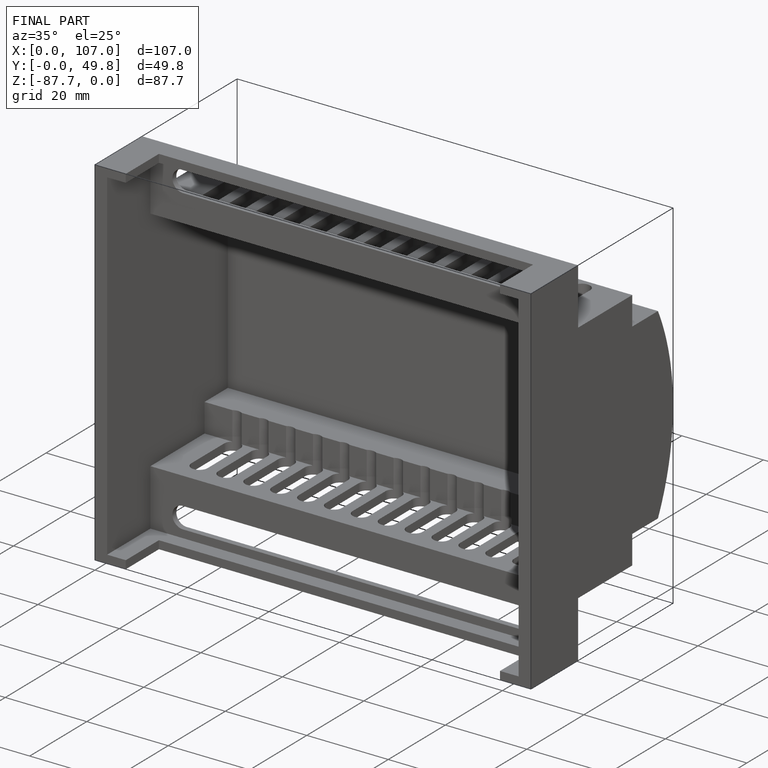
[diagram: finished part — iso view with bounding-box wireframe]
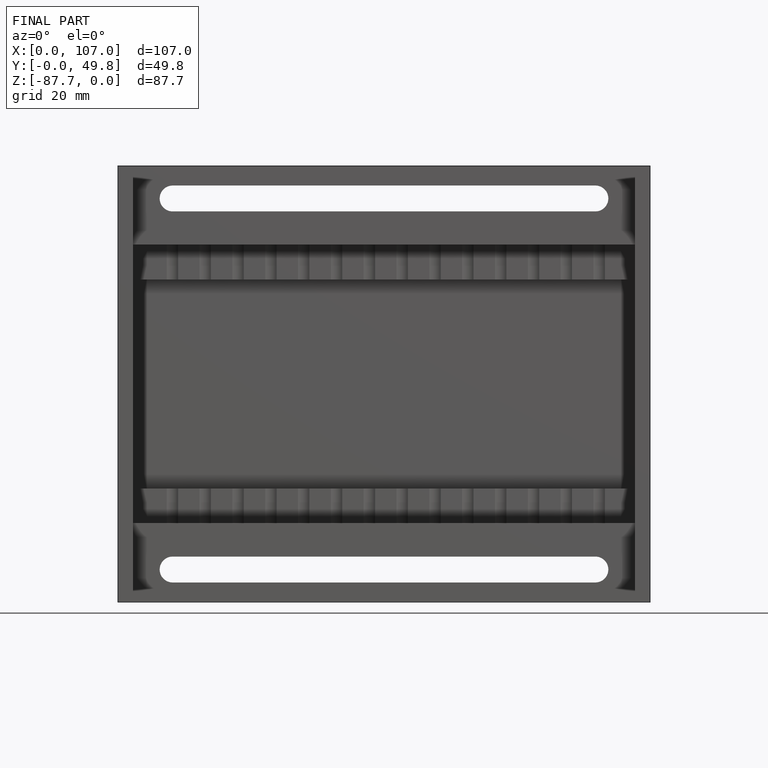
[diagram: finished part — front view with bounding-box wireframe]
